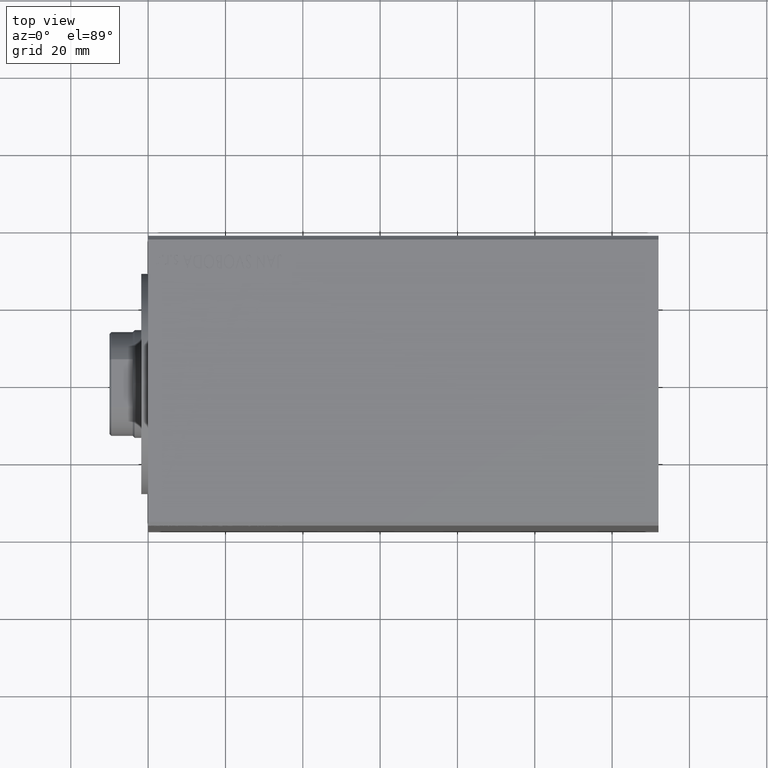
[diagram: clean part render]
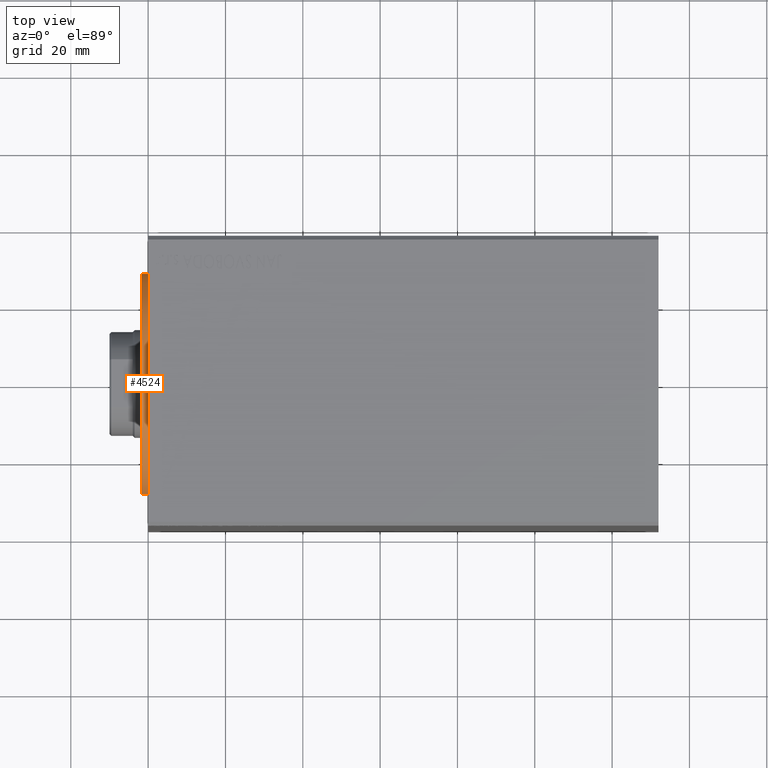
[diagram: same view with one face highlighted and labeled with its STEP entity id]
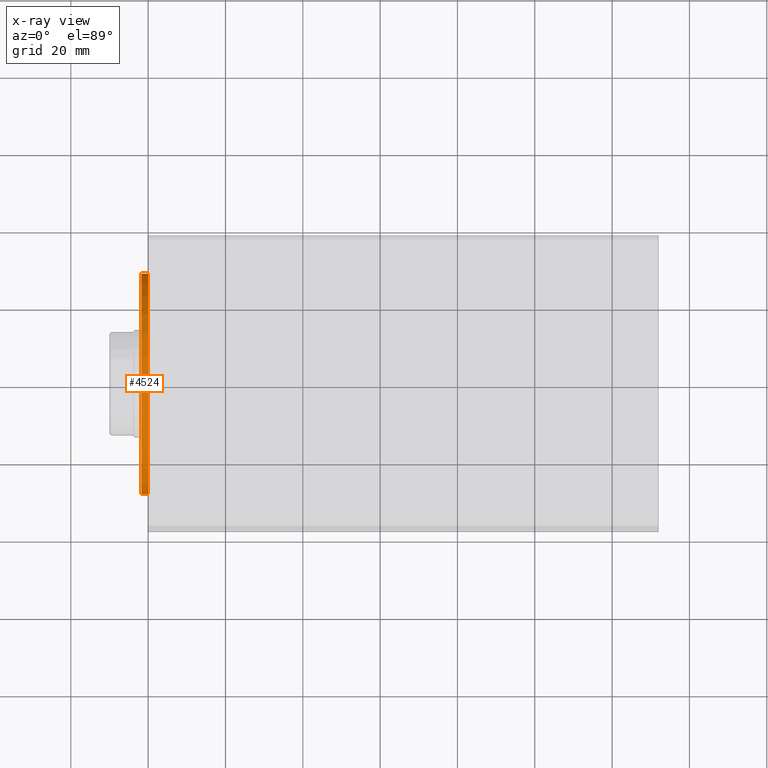
[diagram: x-ray of the same camera — body ghosted, the highlighted face saturated]
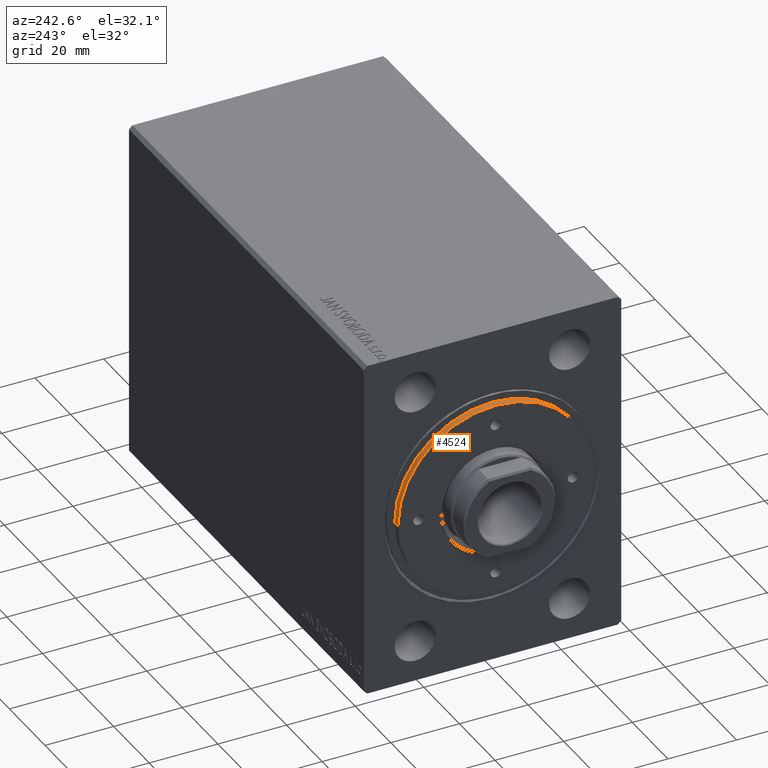
[diagram: same view with one face highlighted and labeled with its STEP entity id]
A machine part, top view. The second image highlights one B-rep face of the part: STEP entity #4524.
The next image is the same camera in x-ray: the body ghosted, the highlighted face saturated — about 0% of this face is hidden behind the body in this view.
A second angle (auxiliary view) of the same face is appended — the face is thin or edge-on in the first view.
In plain terms, the highlighted cylindrical surface (partial cylindrical patch) has radius 28.5 mm, axis along (1, -0, 0).
Its self-contained STEP definition (entity closure, byte-faithful):
#958 = DIRECTION ( 'NONE',  ( -0.000000000000000000, -0.000000000000000000, -1.000000000000000000 ) ) ;
#1235 = VERTEX_POINT ( 'NONE', #12405 ) ;
#2326 = ORIENTED_EDGE ( 'NONE', *, *, #41391, .T. ) ;
#3252 = VERTEX_POINT ( 'NONE', #18152 ) ;
#4524 = ADVANCED_FACE ( 'NONE', ( #11829 ), #32082, .T. ) ;
#4922 = DIRECTION ( 'NONE',  ( 0.000000000000000000, 0.000000000000000000, 1.000000000000000000 ) ) ;
#7566 = CIRCLE ( 'NONE', #42350, 28.50000000000000000 ) ;
#10147 = ORIENTED_EDGE ( 'NONE', *, *, #26823, .F. ) ;
#10846 = DIRECTION ( 'NONE',  ( 1.000000000000000000, 0.000000000000000000, 0.000000000000000000 ) ) ;
#11343 = LINE ( 'NONE', #24482, #20896 ) ;
#11829 = FACE_OUTER_BOUND ( 'NONE', #22803, .T. ) ;
#11913 = DIRECTION ( 'NONE',  ( -0.000000000000000000, -0.000000000000000000, -1.000000000000000000 ) ) ;
#12405 = CARTESIAN_POINT ( 'NONE',  ( 28.50000000000000000, 3.490243377569956456E-15, 8.199999999999999289 ) ) ;
#12470 = ORIENTED_EDGE ( 'NONE', *, *, #31938, .F. ) ;
#12952 = CARTESIAN_POINT ( 'NONE',  ( -28.50000000000000000, 0.000000000000000000, 9.999999999999998224 ) ) ;
#14511 = CARTESIAN_POINT ( 'NONE',  ( 0.000000000000000000, 0.000000000000000000, 9.999999999999998224 ) ) ;
#14766 = EDGE_CURVE ( 'NONE', #30300, #3252, #15696, .T. ) ;
#15696 = LINE ( 'NONE', #18578, #24838 ) ;
#16860 = ORIENTED_EDGE ( 'NONE', *, *, #14766, .T. ) ;
#16979 = AXIS2_PLACEMENT_3D ( 'NONE', #35199, #958, #21194 ) ;
#18152 = CARTESIAN_POINT ( 'NONE',  ( -28.50000000000000000, 0.000000000000000000, 8.199999999999999289 ) ) ;
#18578 = CARTESIAN_POINT ( 'NONE',  ( -28.50000000000000000, 0.000000000000000000, 9.999999999999998224 ) ) ;
#20849 = CARTESIAN_POINT ( 'NONE',  ( 0.000000000000000000, 0.000000000000000000, 8.199999999999999289 ) ) ;
#20896 = VECTOR ( 'NONE', #25343, 1000.000000000000000 ) ;
#21194 = DIRECTION ( 'NONE',  ( -1.000000000000000000, 0.000000000000000000, 0.000000000000000000 ) ) ;
#22803 = EDGE_LOOP ( 'NONE', ( #12470, #10147, #16860, #2326 ) ) ;
#24482 = CARTESIAN_POINT ( 'NONE',  ( 28.50000000000000000, 3.490243377569956456E-15, 9.999999999999998224 ) ) ;
#24838 = VECTOR ( 'NONE', #11913, 1000.000000000000000 ) ;
#25028 = CIRCLE ( 'NONE', #33572, 28.50000000000000000 ) ;
#25343 = DIRECTION ( 'NONE',  ( -0.000000000000000000, -0.000000000000000000, -1.000000000000000000 ) ) ;
#26823 = EDGE_CURVE ( 'NONE', #30300, #39585, #25028, .T. ) ;
#28081 = DIRECTION ( 'NONE',  ( 1.000000000000000000, 0.000000000000000000, 0.000000000000000000 ) ) ;
#30300 = VERTEX_POINT ( 'NONE', #12952 ) ;
#31931 = CARTESIAN_POINT ( 'NONE',  ( 28.50000000000000000, 3.490243377569956456E-15, 9.999999999999998224 ) ) ;
#31938 = EDGE_CURVE ( 'NONE', #39585, #1235, #11343, .T. ) ;
#32082 = CYLINDRICAL_SURFACE ( 'NONE', #16979, 28.50000000000000000 ) ;
#33572 = AXIS2_PLACEMENT_3D ( 'NONE', #14511, #4922, #28081 ) ;
#35199 = CARTESIAN_POINT ( 'NONE',  ( 0.000000000000000000, 0.000000000000000000, 9.999999999999998224 ) ) ;
#39585 = VERTEX_POINT ( 'NONE', #31931 ) ;
#41087 = DIRECTION ( 'NONE',  ( 0.000000000000000000, 0.000000000000000000, 1.000000000000000000 ) ) ;
#41391 = EDGE_CURVE ( 'NONE', #3252, #1235, #7566, .T. ) ;
#42350 = AXIS2_PLACEMENT_3D ( 'NONE', #20849, #41087, #10846 ) ;